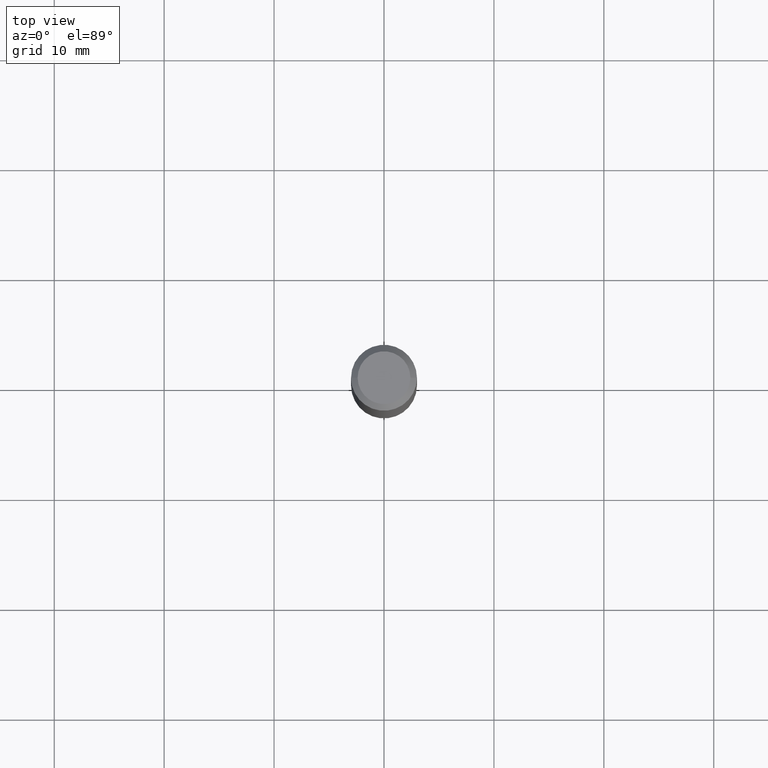
[diagram: clean part render]
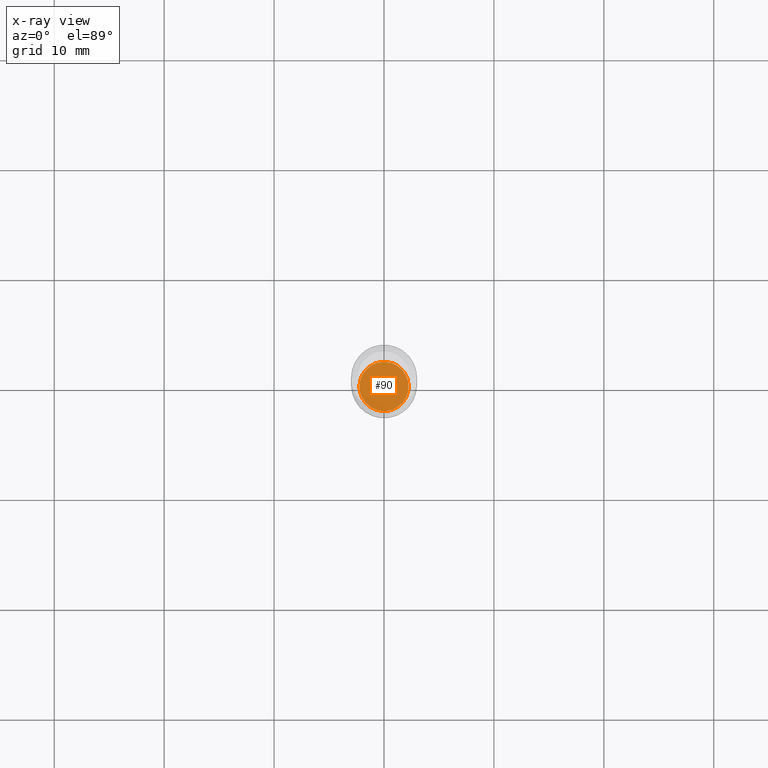
[diagram: x-ray — body ghosted, one internal face saturated and labeled with its STEP entity id]
A machine part, top view, then the same camera in x-ray: the body is ghosted and one INTERNAL B-rep face — a face not visible from any outside direction — is saturated and labeled: STEP entity #90.
In plain terms, the highlighted planar face has unit normal (-0, 0, 1).
Its self-contained STEP definition (entity closure, byte-faithful):
#1 = CIRCLE ( 'NONE', #194, 0.08809999999999999776 ) ;
#8 = CARTESIAN_POINT ( 'NONE',  ( 4.476919743483128975E-29, -6.391854887020145602E-15, -1.830699999999999772 ) ) ;
#16 = PLANE ( 'NONE',  #405 ) ;
#19 = DIRECTION ( 'NONE',  ( 1.000000000000000000, -6.982962677686265922E-15, 4.876176775795935793E-29 ) ) ;
#77 = ORIENTED_EDGE ( 'NONE', *, *, #135, .F. ) ;
#79 = EDGE_LOOP ( 'NONE', ( #77, #146 ) ) ;
#88 = DIRECTION ( 'NONE',  ( -2.438088387897960049E-29, 3.491481338843145188E-15, 1.000000000000000000 ) ) ;
#90 = ADVANCED_FACE ( 'NONE', ( #471 ), #16, .F. ) ;
#120 = CARTESIAN_POINT ( 'NONE',  ( 4.476919743483128975E-29, -6.391854887020145602E-15, -1.830699999999999772 ) ) ;
#135 = EDGE_CURVE ( 'NONE', #316, #152, #476, .T. ) ;
#146 = ORIENTED_EDGE ( 'NONE', *, *, #363, .F. ) ;
#149 = DIRECTION ( 'NONE',  ( -2.445468806185136597E-29, 3.491481338843145583E-15, 1.000000000000000000 ) ) ;
#152 = VERTEX_POINT ( 'NONE', #301 ) ;
#194 = AXIS2_PLACEMENT_3D ( 'NONE', #8, #149, #463 ) ;
#229 = CARTESIAN_POINT ( 'NONE',  ( 0.08809999999999999776, -7.007053898924305548E-15, -1.830699999999999772 ) ) ;
#251 = CARTESIAN_POINT ( 'NONE',  ( 4.476919743483128975E-29, -6.391854887020145602E-15, -1.830699999999999772 ) ) ;
#301 = CARTESIAN_POINT ( 'NONE',  ( -0.08809999999999999776, -5.763217509641386449E-15, -1.830699999999999772 ) ) ;
#316 = VERTEX_POINT ( 'NONE', #229 ) ;
#363 = EDGE_CURVE ( 'NONE', #152, #316, #1, .T. ) ;
#405 = AXIS2_PLACEMENT_3D ( 'NONE', #120, #88, #19 ) ;
#412 = DIRECTION ( 'NONE',  ( 1.000000000000000000, -6.982962677686264344E-15, 0.000000000000000000 ) ) ;
#444 = AXIS2_PLACEMENT_3D ( 'NONE', #251, #490, #412 ) ;
#463 = DIRECTION ( 'NONE',  ( 1.000000000000000000, -6.982962677686264344E-15, 0.000000000000000000 ) ) ;
#471 = FACE_OUTER_BOUND ( 'NONE', #79, .T. ) ;
#476 = CIRCLE ( 'NONE', #444, 0.08809999999999999776 ) ;
#490 = DIRECTION ( 'NONE',  ( -2.445468806185136597E-29, 3.491481338843145583E-15, 1.000000000000000000 ) ) ;